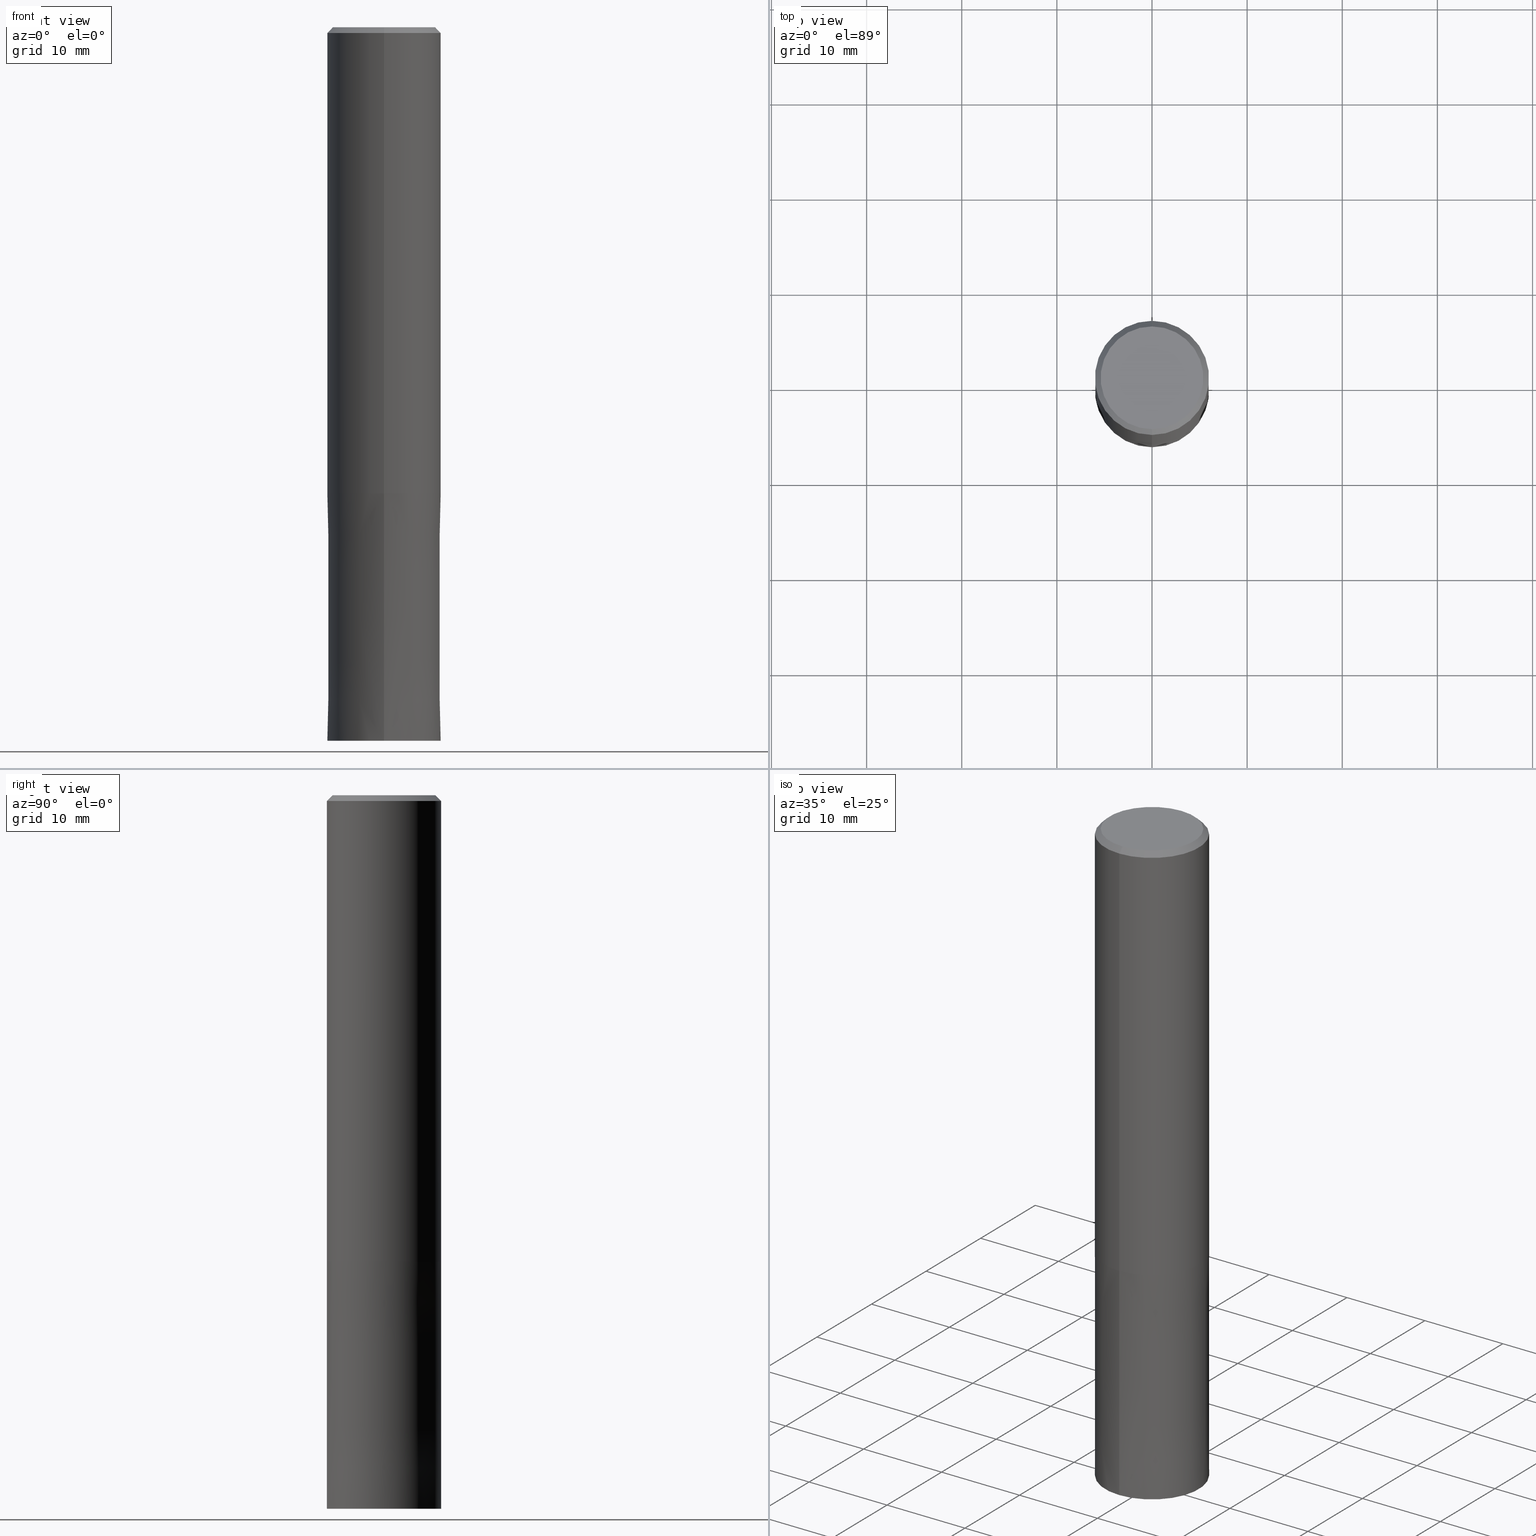
[diagram: canonical four-view strip — front | top / right | iso, engineering-drawing reading convention]
A machine part, canonical four-view strip (front | top / right | iso — engineering-drawing reading convention). The complete STEP part file that produces these views, byte-faithful:
ISO-10303-21;
HEADER;
FILE_DESCRIPTION(('no description'),'unknown implementation level');
FILE_NAME('HMS6120-2600-Huellk.stp','  ',('CIMSOURCE GmbH'),('CADClick - KiM GmbH - www.kimweb.de'),'unknown preprocess','ACIS','unknown authorization');
FILE_SCHEMA(('automotive_design'));
ENDSEC;
DATA;
#1=MECHANICAL_DESIGN_GEOMETRIC_PRESENTATION_REPRESENTATION(' ',(#14,#15,#16,#17,#18,#19,#20,#21,#22,#23,#24,#25,#26,#27,#28,#29,#30,#31,#32,#33,#34,#35,#36,#37,#38,#39,#40,#41,#42,#43,#44,#45,#46,#47,#48,#49,#50,#51,#52,#53,#54,#55,#56,#57,#58,#59,#60,#61,#62,#63,#64,#65,#66,#67,#68,#69,#70,#71,#72,#73,#74,#75,#76),#10);
#2=PRODUCT_DEFINITION_CONTEXT('',#77,'design');
#3=APPLICATION_PROTOCOL_DEFINITION('INTERNATIONAL STANDARD','automotive_design',1994,#77);
#4=PRODUCT_CATEGORY_RELATIONSHIP('NONE','NONE',#78,#79);
#5=SHAPE_DEFINITION_REPRESENTATION(#80,#81);
#6=PRODUCT_DEFINITION_CONTEXT('',#82,'design');
#7=APPLICATION_PROTOCOL_DEFINITION('INTERNATIONAL STANDARD','automotive_design',1994,#82);
#8=PRODUCT_CATEGORY_RELATIONSHIP('NONE','NONE',#83,#84);
#9=SHAPE_DEFINITION_REPRESENTATION(#85,#86);
#10= (GEOMETRIC_REPRESENTATION_CONTEXT(3)GLOBAL_UNCERTAINTY_ASSIGNED_CONTEXT((#89))GLOBAL_UNIT_ASSIGNED_CONTEXT((#91,#92,#93))REPRESENTATION_CONTEXT('NONE','WORKSPACE'));
#14=STYLED_ITEM('',(#95),#96);
#15=STYLED_ITEM('',(#97),#98);
#16=STYLED_ITEM('',(#99),#100);
#17=STYLED_ITEM('',(#101),#102);
#18=STYLED_ITEM('',(#103),#104);
#19=STYLED_ITEM('',(#105),#106);
#20=STYLED_ITEM('',(#107),#108);
#21=STYLED_ITEM('',(#109),#110);
#22=STYLED_ITEM('',(#111),#112);
#23=STYLED_ITEM('',(#113),#114);
#24=STYLED_ITEM('',(#115),#116);
#25=STYLED_ITEM('',(#117),#118);
#26=STYLED_ITEM('',(#119),#120);
#27=STYLED_ITEM('',(#121),#122);
#28=STYLED_ITEM('',(#123),#124);
#29=STYLED_ITEM('',(#125),#126);
#30=STYLED_ITEM('',(#127),#128);
#31=STYLED_ITEM('',(#129),#130);
#32=STYLED_ITEM('',(#131),#132);
#33=STYLED_ITEM('',(#133),#134);
#34=STYLED_ITEM('',(#135),#136);
#35=STYLED_ITEM('',(#137),#138);
#36=STYLED_ITEM('',(#139),#140);
#37=STYLED_ITEM('',(#141),#142);
#38=STYLED_ITEM('',(#143),#144);
#39=STYLED_ITEM('',(#145),#146);
#40=STYLED_ITEM('',(#147),#148);
#41=STYLED_ITEM('',(#149),#150);
#42=STYLED_ITEM('',(#151),#152);
#43=STYLED_ITEM('',(#153),#154);
#44=STYLED_ITEM('',(#155),#156);
#45=STYLED_ITEM('',(#157),#158);
#46=STYLED_ITEM('',(#159),#160);
#47=STYLED_ITEM('',(#161),#162);
#48=STYLED_ITEM('',(#163),#164);
#49=STYLED_ITEM('',(#165),#166);
#50=STYLED_ITEM('',(#167),#168);
#51=STYLED_ITEM('',(#169),#170);
#52=STYLED_ITEM('',(#171),#172);
#53=STYLED_ITEM('',(#173),#174);
#54=STYLED_ITEM('',(#175),#176);
#55=STYLED_ITEM('',(#177),#178);
#56=STYLED_ITEM('',(#179),#180);
#57=STYLED_ITEM('',(#181),#182);
#58=STYLED_ITEM('',(#183),#184);
#59=STYLED_ITEM('',(#185),#186);
#60=STYLED_ITEM('',(#187),#188);
#61=STYLED_ITEM('',(#189),#190);
#62=STYLED_ITEM('',(#191),#192);
#63=STYLED_ITEM('',(#193),#194);
#64=STYLED_ITEM('',(#195),#196);
#65=STYLED_ITEM('',(#197),#198);
#66=STYLED_ITEM('',(#199),#200);
#67=STYLED_ITEM('',(#201),#202);
#68=STYLED_ITEM('',(#203),#204);
#69=STYLED_ITEM('',(#205),#206);
#70=STYLED_ITEM('',(#207),#208);
#71=STYLED_ITEM('',(#209),#210);
#72=STYLED_ITEM('',(#211),#212);
#73=STYLED_ITEM('',(#213),#214);
#74=STYLED_ITEM('',(#215),#216);
#75=STYLED_ITEM('',(#217),#218);
#76=STYLED_ITEM('',(#219),#220);
#77=APPLICATION_CONTEXT(' ');
#78=PRODUCT_CATEGORY('part','NONE');
#79=PRODUCT_RELATED_PRODUCT_CATEGORY('detail',' ',(#221));
#80=PRODUCT_DEFINITION_SHAPE('NONE','NONE',#222);
#81=ADVANCED_BREP_SHAPE_REPRESENTATION('1',(#220,#223),#10);
#82=APPLICATION_CONTEXT(' ');
#83=PRODUCT_CATEGORY('part','NONE');
#84=PRODUCT_RELATED_PRODUCT_CATEGORY('detail',' ',(#224));
#85=PRODUCT_DEFINITION_SHAPE('NONE','NONE',#225);
#86=ADVANCED_BREP_SHAPE_REPRESENTATION('2',(#160,#226),#10);
#89=UNCERTAINTY_MEASURE_WITH_UNIT(LENGTH_MEASURE(1.0E-006),#91,'','');
#91= (CONVERSION_BASED_UNIT('MILLIMETRE',#229)LENGTH_UNIT()NAMED_UNIT(#232));
#92= (NAMED_UNIT(#234)PLANE_ANGLE_UNIT()SI_UNIT($,.RADIAN.));
#93= (NAMED_UNIT(#234)SOLID_ANGLE_UNIT()SI_UNIT($,.STERADIAN.));
#95=PRESENTATION_STYLE_ASSIGNMENT((#240));
#96=VERTEX_POINT('',#241);
#97=PRESENTATION_STYLE_ASSIGNMENT((#242));
#98=EDGE_CURVE('',#136,#218,#243,.T.);
#99=PRESENTATION_STYLE_ASSIGNMENT((#244));
#100=EDGE_CURVE('',#176,#172,#245,.T.);
#101=PRESENTATION_STYLE_ASSIGNMENT((#246));
#102=EDGE_CURVE('',#120,#210,#247,.T.);
#103=PRESENTATION_STYLE_ASSIGNMENT((#248));
#104=EDGE_CURVE('',#172,#180,#249,.T.);
#105=PRESENTATION_STYLE_ASSIGNMENT((#250));
#106=EDGE_CURVE('',#210,#120,#251,.T.);
#107=PRESENTATION_STYLE_ASSIGNMENT((#252));
#108=ADVANCED_FACE('',(#253),#254,.T.);
#109=PRESENTATION_STYLE_ASSIGNMENT((#255));
#110=EDGE_CURVE('',#172,#176,#256,.T.);
#111=PRESENTATION_STYLE_ASSIGNMENT((#257));
#112=EDGE_CURVE('',#150,#192,#258,.T.);
#113=PRESENTATION_STYLE_ASSIGNMENT((#259));
#114=EDGE_CURVE('',#138,#190,#260,.T.);
#115=PRESENTATION_STYLE_ASSIGNMENT((#261));
#116=EDGE_CURVE('',#140,#96,#262,.T.);
#117=PRESENTATION_STYLE_ASSIGNMENT((#263));
#118=EDGE_CURVE('',#170,#138,#264,.T.);
#119=PRESENTATION_STYLE_ASSIGNMENT((#265));
#120=VERTEX_POINT('',#266);
#121=PRESENTATION_STYLE_ASSIGNMENT((#267));
#122=ADVANCED_FACE('',(#268),#269,.F.);
#123=PRESENTATION_STYLE_ASSIGNMENT((#270));
#124=ADVANCED_FACE('',(#271,#272),#273,.T.);
#125=PRESENTATION_STYLE_ASSIGNMENT((#274));
#126=ADVANCED_FACE('',(#275),#276,.T.);
#127=PRESENTATION_STYLE_ASSIGNMENT((#277));
#128=EDGE_CURVE('',#170,#96,#278,.T.);
#129=PRESENTATION_STYLE_ASSIGNMENT((#279));
#130=EDGE_CURVE('',#174,#192,#280,.T.);
#131=PRESENTATION_STYLE_ASSIGNMENT((#281));
#132=EDGE_CURVE('',#164,#176,#282,.T.);
#133=PRESENTATION_STYLE_ASSIGNMENT((#283));
#134=EDGE_CURVE('',#154,#150,#284,.T.);
#135=PRESENTATION_STYLE_ASSIGNMENT((#285));
#136=VERTEX_POINT('',#286);
#137=PRESENTATION_STYLE_ASSIGNMENT((#287));
#138=VERTEX_POINT('',#288);
#139=PRESENTATION_STYLE_ASSIGNMENT((#289));
#140=VERTEX_POINT('',#290);
#141=PRESENTATION_STYLE_ASSIGNMENT((#291));
#142=EDGE_CURVE('',#164,#180,#292,.T.);
#143=PRESENTATION_STYLE_ASSIGNMENT((#293));
#144=ADVANCED_FACE('',(#294),#295,.F.);
#145=PRESENTATION_STYLE_ASSIGNMENT((#296));
#146=EDGE_CURVE('',#120,#136,#297,.T.);
#147=PRESENTATION_STYLE_ASSIGNMENT((#298));
#148=ADVANCED_FACE('',(#299),#300,.T.);
#149=PRESENTATION_STYLE_ASSIGNMENT((#301));
#150=VERTEX_POINT('',#302);
#151=PRESENTATION_STYLE_ASSIGNMENT((#303));
#152=EDGE_CURVE('',#96,#140,#304,.T.);
#153=PRESENTATION_STYLE_ASSIGNMENT((#305));
#154=VERTEX_POINT('',#306);
#155=PRESENTATION_STYLE_ASSIGNMENT((#307));
#156=EDGE_CURVE('',#140,#138,#308,.T.);
#157=PRESENTATION_STYLE_ASSIGNMENT((#309));
#158=EDGE_CURVE('',#180,#164,#310,.T.);
#159=PRESENTATION_STYLE_ASSIGNMENT((#311));
#160=MANIFOLD_SOLID_BREP('2',#312);
#161=PRESENTATION_STYLE_ASSIGNMENT((#313));
#162=ADVANCED_FACE('',(#314,#315),#316,.T.);
#163=PRESENTATION_STYLE_ASSIGNMENT((#317));
#164=VERTEX_POINT('',#318);
#165=PRESENTATION_STYLE_ASSIGNMENT((#319));
#166=ADVANCED_FACE('',(#320),#321,.T.);
#167=PRESENTATION_STYLE_ASSIGNMENT((#322));
#168=VERTEX_POINT('',#323);
#169=PRESENTATION_STYLE_ASSIGNMENT((#324));
#170=VERTEX_POINT('',#325);
#171=PRESENTATION_STYLE_ASSIGNMENT((#326));
#172=VERTEX_POINT('',#327);
#173=PRESENTATION_STYLE_ASSIGNMENT((#328));
#174=VERTEX_POINT('',#329);
#175=PRESENTATION_STYLE_ASSIGNMENT((#330));
#176=VERTEX_POINT('',#331);
#177=PRESENTATION_STYLE_ASSIGNMENT((#332));
#178=ADVANCED_FACE('',(#333),#334,.T.);
#179=PRESENTATION_STYLE_ASSIGNMENT((#335));
#180=VERTEX_POINT('',#336);
#181=PRESENTATION_STYLE_ASSIGNMENT((#337));
#182=EDGE_CURVE('',#218,#136,#338,.T.);
#183=PRESENTATION_STYLE_ASSIGNMENT((#339));
#184=ADVANCED_FACE('',(#340),#341,.T.);
#185=PRESENTATION_STYLE_ASSIGNMENT((#342));
#186=ADVANCED_FACE('',(#343),#344,.T.);
#187=PRESENTATION_STYLE_ASSIGNMENT((#345));
#188=EDGE_CURVE('',#174,#154,#346,.T.);
#189=PRESENTATION_STYLE_ASSIGNMENT((#347));
#190=VERTEX_POINT('',#348);
#191=PRESENTATION_STYLE_ASSIGNMENT((#349));
#192=VERTEX_POINT('',#350);
#193=PRESENTATION_STYLE_ASSIGNMENT((#351));
#194=ADVANCED_FACE('',(#352),#353,.T.);
#195=PRESENTATION_STYLE_ASSIGNMENT((#354));
#196=EDGE_CURVE('',#150,#154,#355,.T.);
#197=PRESENTATION_STYLE_ASSIGNMENT((#356));
#198=EDGE_CURVE('',#168,#170,#357,.T.);
#199=PRESENTATION_STYLE_ASSIGNMENT((#358));
#200=ADVANCED_FACE('',(#359),#360,.T.);
#201=PRESENTATION_STYLE_ASSIGNMENT((#361));
#202=ADVANCED_FACE('',(#362,#363),#364,.T.);
#203=PRESENTATION_STYLE_ASSIGNMENT((#365));
#204=EDGE_CURVE('',#218,#210,#366,.T.);
#205=PRESENTATION_STYLE_ASSIGNMENT((#367));
#206=EDGE_CURVE('',#192,#174,#368,.T.);
#207=PRESENTATION_STYLE_ASSIGNMENT((#369));
#208=EDGE_CURVE('',#190,#168,#370,.T.);
#209=PRESENTATION_STYLE_ASSIGNMENT((#371));
#210=VERTEX_POINT('',#372);
#211=PRESENTATION_STYLE_ASSIGNMENT((#373));
#212=EDGE_CURVE('',#168,#190,#374,.T.);
#213=PRESENTATION_STYLE_ASSIGNMENT((#375));
#214=ADVANCED_FACE('',(#376),#377,.T.);
#215=PRESENTATION_STYLE_ASSIGNMENT((#378));
#216=EDGE_CURVE('',#138,#170,#379,.T.);
#217=PRESENTATION_STYLE_ASSIGNMENT((#380));
#218=VERTEX_POINT('',#381);
#219=PRESENTATION_STYLE_ASSIGNMENT((#382));
#220=MANIFOLD_SOLID_BREP('1',#383);
#221=PRODUCT('1','1','PART-1-DESC',(#384));
#222=PRODUCT_DEFINITION('NONE','NONE',#385,#2);
#223=AXIS2_PLACEMENT_3D('',#386,#387,#388);
#224=PRODUCT('2','2','PART-2-DESC',(#389));
#225=PRODUCT_DEFINITION('NONE','NONE',#390,#6);
#226=AXIS2_PLACEMENT_3D('',#391,#392,#393);
#229=LENGTH_MEASURE_WITH_UNIT(LENGTH_MEASURE(1.0),#394);
#232=DIMENSIONAL_EXPONENTS(1.0,0.0,0.0,0.0,0.0,0.0,0.0);
#234=DIMENSIONAL_EXPONENTS(0.0,0.0,0.0,0.0,0.0,0.0,0.0);
#240=POINT_STYLE(' ',#395,POSITIVE_LENGTH_MEASURE(1.0E-006),#396);
#241=CARTESIAN_POINT('',(0.0,6.0,-49.0));
#242=CURVE_STYLE('',#397,POSITIVE_LENGTH_MEASURE(1.0E-006),#398);
#243=CIRCLE('',#399,2.7);
#244=CURVE_STYLE('',#400,POSITIVE_LENGTH_MEASURE(1.0E-006),#401);
#245=CIRCLE('',#402,2.7);
#246=CURVE_STYLE('',#403,POSITIVE_LENGTH_MEASURE(1.0E-006),#404);
#247=CIRCLE('',#405,2.7);
#248=CURVE_STYLE('',#406,POSITIVE_LENGTH_MEASURE(1.0E-006),#407);
#249=LINE('',#408,#409);
#250=CURVE_STYLE('',#410,POSITIVE_LENGTH_MEASURE(1.0E-006),#411);
#251=CIRCLE('',#412,2.7);
#252=SURFACE_STYLE_USAGE(.BOTH.,#413);
#253=FACE_OUTER_BOUND('',#414,.T.);
#254=CYLINDRICAL_SURFACE('',#415,2.7);
#255=CURVE_STYLE('',#416,POSITIVE_LENGTH_MEASURE(1.0E-006),#417);
#256=CIRCLE('',#418,2.7);
#257=CURVE_STYLE('',#419,POSITIVE_LENGTH_MEASURE(1.0E-006),#420);
#258=LINE('',#421,#422);
#259=CURVE_STYLE('',#423,POSITIVE_LENGTH_MEASURE(1.0E-006),#424);
#260=LINE('',#425,#426);
#261=CURVE_STYLE('',#427,POSITIVE_LENGTH_MEASURE(1.0E-006),#428);
#262=CIRCLE('',#429,6.0);
#263=CURVE_STYLE('',#430,POSITIVE_LENGTH_MEASURE(1.0E-006),#431);
#264=CIRCLE('',#432,6.0);
#265=POINT_STYLE(' ',#433,POSITIVE_LENGTH_MEASURE(1.0E-006),#434);
#266=CARTESIAN_POINT('',(0.0,2.7,-49.0));
#267=SURFACE_STYLE_USAGE(.BOTH.,#435);
#268=FACE_OUTER_BOUND('',#436,.T.);
#269=CYLINDRICAL_SURFACE('',#437,2.7);
#270=SURFACE_STYLE_USAGE(.BOTH.,#438);
#271=FACE_OUTER_BOUND('',#439,.T.);
#272=FACE_BOUND('',#440,.T.);
#273=PLANE('',#441);
#274=SURFACE_STYLE_USAGE(.BOTH.,#442);
#275=FACE_OUTER_BOUND('',#443,.T.);
#276=PLANE('',#444);
#277=CURVE_STYLE('',#445,POSITIVE_LENGTH_MEASURE(1.0E-006),#446);
#278=LINE('',#447,#448);
#279=CURVE_STYLE('',#449,POSITIVE_LENGTH_MEASURE(1.0E-006),#450);
#280=CIRCLE('',#451,5.9999);
#281=CURVE_STYLE('',#452,POSITIVE_LENGTH_MEASURE(1.0E-006),#453);
#282=LINE('',#454,#455);
#283=CURVE_STYLE('',#456,POSITIVE_LENGTH_MEASURE(1.0E-006),#457);
#284=CIRCLE('',#458,6.0);
#285=POINT_STYLE(' ',#459,POSITIVE_LENGTH_MEASURE(1.0E-006),#460);
#286=CARTESIAN_POINT('',(0.0,2.7,-75.0));
#287=POINT_STYLE(' ',#461,POSITIVE_LENGTH_MEASURE(1.0E-006),#462);
#288=CARTESIAN_POINT('',(7.34763812293426E-016,-6.0,-0.600000000000001));
#289=POINT_STYLE(' ',#463,POSITIVE_LENGTH_MEASURE(1.0E-006),#464);
#290=CARTESIAN_POINT('',(7.34763812293426E-016,-6.0,-49.0));
#291=CURVE_STYLE('',#465,POSITIVE_LENGTH_MEASURE(1.0E-006),#466);
#292=CIRCLE('',#467,2.7);
#293=SURFACE_STYLE_USAGE(.BOTH.,#468);
#294=FACE_OUTER_BOUND('',#469,.T.);
#295=CYLINDRICAL_SURFACE('',#470,2.7);
#296=CURVE_STYLE('',#471,POSITIVE_LENGTH_MEASURE(1.0E-006),#472);
#297=LINE('',#473,#474);
#298=SURFACE_STYLE_USAGE(.BOTH.,#475);
#299=FACE_OUTER_BOUND('',#476,.T.);
#300=CYLINDRICAL_SURFACE('',#477,2.7);
#301=POINT_STYLE(' ',#478,POSITIVE_LENGTH_MEASURE(1.0E-006),#479);
#302=CARTESIAN_POINT('',(7.34763812293426E-016,-6.0,-75.0));
#303=CURVE_STYLE('',#480,POSITIVE_LENGTH_MEASURE(1.0E-006),#481);
#304=CIRCLE('',#482,6.0);
#305=POINT_STYLE(' ',#483,POSITIVE_LENGTH_MEASURE(1.0E-006),#484);
#306=CARTESIAN_POINT('',(0.0,6.0,-75.0));
#307=CURVE_STYLE('',#485,POSITIVE_LENGTH_MEASURE(1.0E-006),#486);
#308=LINE('',#487,#488);
#309=CURVE_STYLE('',#489,POSITIVE_LENGTH_MEASURE(1.0E-006),#490);
#310=CIRCLE('',#491,2.7);
#311=SURFACE_STYLE_USAGE(.BOTH.,#492);
#312=CLOSED_SHELL('',(#144,#178,#124,#186,#162,#122));
#313=SURFACE_STYLE_USAGE(.BOTH.,#493);
#314=FACE_OUTER_BOUND('',#494,.T.);
#315=FACE_BOUND('',#495,.T.);
#316=PLANE('',#496);
#317=POINT_STYLE(' ',#497,POSITIVE_LENGTH_MEASURE(1.0E-006),#498);
#318=CARTESIAN_POINT('',(0.0,2.7,-49.0));
#319=SURFACE_STYLE_USAGE(.BOTH.,#499);
#320=FACE_OUTER_BOUND('',#500,.T.);
#321=CONICAL_SURFACE('',#501,5.7,0.785398163397447);
#322=POINT_STYLE(' ',#502,POSITIVE_LENGTH_MEASURE(1.0E-006),#503);
#323=CARTESIAN_POINT('',(0.0,5.4,0.0));
#324=POINT_STYLE(' ',#504,POSITIVE_LENGTH_MEASURE(1.0E-006),#505);
#325=CARTESIAN_POINT('',(0.0,6.0,-0.600000000000001));
#326=POINT_STYLE(' ',#506,POSITIVE_LENGTH_MEASURE(1.0E-006),#507);
#327=CARTESIAN_POINT('',(3.30643715532042E-016,-2.7,-74.76));
#328=POINT_STYLE(' ',#508,POSITIVE_LENGTH_MEASURE(1.0E-006),#509);
#329=CARTESIAN_POINT('',(0.0,5.9999,-49.0));
#330=POINT_STYLE(' ',#510,POSITIVE_LENGTH_MEASURE(1.0E-006),#511);
#331=CARTESIAN_POINT('',(0.0,2.7,-74.76));
#332=SURFACE_STYLE_USAGE(.BOTH.,#512);
#333=FACE_OUTER_BOUND('',#513,.T.);
#334=CONICAL_SURFACE('',#514,5.99995,3.84615384612592E-006);
#335=POINT_STYLE(' ',#515,POSITIVE_LENGTH_MEASURE(1.0E-006),#516);
#336=CARTESIAN_POINT('',(3.30643715532042E-016,-2.7,-49.0));
#337=CURVE_STYLE('',#517,POSITIVE_LENGTH_MEASURE(1.0E-006),#518);
#338=CIRCLE('',#519,2.7);
#339=SURFACE_STYLE_USAGE(.BOTH.,#520);
#340=FACE_OUTER_BOUND('',#521,.T.);
#341=CONICAL_SURFACE('',#522,5.7,0.785398163397447);
#342=SURFACE_STYLE_USAGE(.BOTH.,#523);
#343=FACE_OUTER_BOUND('',#524,.T.);
#344=CONICAL_SURFACE('',#525,5.99995,3.84615384612592E-006);
#345=CURVE_STYLE('',#526,POSITIVE_LENGTH_MEASURE(1.0E-006),#527);
#346=LINE('',#528,#529);
#347=POINT_STYLE(' ',#530,POSITIVE_LENGTH_MEASURE(1.0E-006),#531);
#348=CARTESIAN_POINT('',(6.61287431064084E-016,-5.4,0.0));
#349=POINT_STYLE(' ',#532,POSITIVE_LENGTH_MEASURE(1.0E-006),#533);
#350=CARTESIAN_POINT('',(7.34751566229888E-016,-5.9999,-49.0));
#351=SURFACE_STYLE_USAGE(.BOTH.,#534);
#352=FACE_OUTER_BOUND('',#535,.T.);
#353=CYLINDRICAL_SURFACE('',#536,6.0);
#354=CURVE_STYLE('',#537,POSITIVE_LENGTH_MEASURE(1.0E-006),#538);
#355=CIRCLE('',#539,6.0);
#356=CURVE_STYLE('',#540,POSITIVE_LENGTH_MEASURE(1.0E-006),#541);
#357=LINE('',#542,#543);
#358=SURFACE_STYLE_USAGE(.BOTH.,#544);
#359=FACE_OUTER_BOUND('',#545,.T.);
#360=PLANE('',#546);
#361=SURFACE_STYLE_USAGE(.BOTH.,#547);
#362=FACE_OUTER_BOUND('',#548,.T.);
#363=FACE_BOUND('',#549,.T.);
#364=PLANE('',#550);
#365=CURVE_STYLE('',#551,POSITIVE_LENGTH_MEASURE(1.0E-006),#552);
#366=LINE('',#553,#554);
#367=CURVE_STYLE('',#555,POSITIVE_LENGTH_MEASURE(1.0E-006),#556);
#368=CIRCLE('',#557,5.9999);
#369=CURVE_STYLE('',#558,POSITIVE_LENGTH_MEASURE(1.0E-006),#559);
#370=CIRCLE('',#560,5.4);
#371=POINT_STYLE(' ',#561,POSITIVE_LENGTH_MEASURE(1.0E-006),#562);
#372=CARTESIAN_POINT('',(3.30643715532042E-016,-2.7,-49.0));
#373=CURVE_STYLE('',#563,POSITIVE_LENGTH_MEASURE(1.0E-006),#564);
#374=CIRCLE('',#565,5.4);
#375=SURFACE_STYLE_USAGE(.BOTH.,#566);
#376=FACE_OUTER_BOUND('',#567,.T.);
#377=CYLINDRICAL_SURFACE('',#568,6.0);
#378=CURVE_STYLE('',#569,POSITIVE_LENGTH_MEASURE(1.0E-006),#570);
#379=CIRCLE('',#571,6.0);
#380=POINT_STYLE(' ',#572,POSITIVE_LENGTH_MEASURE(1.0E-006),#573);
#381=CARTESIAN_POINT('',(3.30643715532042E-016,-2.7,-75.0));
#382=SURFACE_STYLE_USAGE(.BOTH.,#574);
#383=CLOSED_SHELL('',(#108,#194,#184,#202,#200,#166,#214,#148,#126));
#384=PRODUCT_CONTEXT('',#77,'mechanical');
#385=PRODUCT_DEFINITION_FORMATION_WITH_SPECIFIED_SOURCE(' ','NONE',#221,.NOT_KNOWN.);
#386=CARTESIAN_POINT('',(0.0,0.0,0.0));
#387=DIRECTION('',(0.0,0.0,1.0));
#388=DIRECTION('',(1.0,0.0,0.0));
#389=PRODUCT_CONTEXT('',#82,'mechanical');
#390=PRODUCT_DEFINITION_FORMATION_WITH_SPECIFIED_SOURCE(' ','NONE',#224,.NOT_KNOWN.);
#391=CARTESIAN_POINT('',(0.0,0.0,0.0));
#392=DIRECTION('',(0.0,0.0,1.0));
#393=DIRECTION('',(1.0,0.0,0.0));
#394= (NAMED_UNIT(#232)LENGTH_UNIT()SI_UNIT(.MILLI.,.METRE.));
#395=PRE_DEFINED_MARKER('');
#396=COLOUR_RGB('',0.498039215803146,0.498039215803146,0.498039215803146);
#397=DRAUGHTING_PRE_DEFINED_CURVE_FONT('continuous');
#398=COLOUR_RGB('',0.800000011920929,0.800000011920929,0.800000011920929);
#399=AXIS2_PLACEMENT_3D('',#576,#577,#578);
#400=DRAUGHTING_PRE_DEFINED_CURVE_FONT('continuous');
#401=COLOUR_RGB('',0.498039215803146,0.498039215803146,0.498039215803146);
#402=AXIS2_PLACEMENT_3D('',#579,#580,#581);
#403=DRAUGHTING_PRE_DEFINED_CURVE_FONT('continuous');
#404=COLOUR_RGB('',0.800000011920929,0.800000011920929,0.800000011920929);
#405=AXIS2_PLACEMENT_3D('',#582,#583,#584);
#406=DRAUGHTING_PRE_DEFINED_CURVE_FONT('continuous');
#407=COLOUR_RGB('',0.498039215803146,0.498039215803146,0.498039215803146);
#408=CARTESIAN_POINT('',(3.30643715532042E-016,-2.7,-61.88));
#409=VECTOR('',#585,1.0);
#410=DRAUGHTING_PRE_DEFINED_CURVE_FONT('continuous');
#411=COLOUR_RGB('',0.800000011920929,0.800000011920929,0.800000011920929);
#412=AXIS2_PLACEMENT_3D('',#586,#587,#588);
#413=SURFACE_SIDE_STYLE('',(#589));
#414=EDGE_LOOP('',(#590,#591,#592,#593));
#415=AXIS2_PLACEMENT_3D('',#594,#595,#596);
#416=DRAUGHTING_PRE_DEFINED_CURVE_FONT('continuous');
#417=COLOUR_RGB('',0.498039215803146,0.498039215803146,0.498039215803146);
#418=AXIS2_PLACEMENT_3D('',#597,#598,#599);
#419=DRAUGHTING_PRE_DEFINED_CURVE_FONT('continuous');
#420=COLOUR_RGB('',0.800000011920929,0.800000011920929,0.800000011920929);
#421=CARTESIAN_POINT('',(7.34757689261657E-016,-5.99995,-62.0));
#422=VECTOR('',#600,1.0);
#423=DRAUGHTING_PRE_DEFINED_CURVE_FONT('continuous');
#424=COLOUR_RGB('',0.498039215803146,0.498039215803146,0.498039215803146);
#425=CARTESIAN_POINT('',(6.98025621678755E-016,-5.7,-0.300000000000004));
#426=VECTOR('',#601,1.0);
#427=DRAUGHTING_PRE_DEFINED_CURVE_FONT('continuous');
#428=COLOUR_RGB('',0.498039215803146,0.498039215803146,0.498039215803146);
#429=AXIS2_PLACEMENT_3D('',#602,#603,#604);
#430=DRAUGHTING_PRE_DEFINED_CURVE_FONT('continuous');
#431=COLOUR_RGB('',0.498039215803146,0.498039215803146,0.498039215803146);
#432=AXIS2_PLACEMENT_3D('',#605,#606,#607);
#433=PRE_DEFINED_MARKER('');
#434=COLOUR_RGB('',0.800000011920929,0.800000011920929,0.800000011920929);
#435=SURFACE_SIDE_STYLE('',(#608));
#436=EDGE_LOOP('',(#609,#610,#611,#612));
#437=AXIS2_PLACEMENT_3D('',#613,#614,#615);
#438=SURFACE_SIDE_STYLE('',(#616));
#439=EDGE_LOOP('',(#617,#618));
#440=EDGE_LOOP('',(#619,#620));
#441=AXIS2_PLACEMENT_3D('',#621,#622,#623);
#442=SURFACE_SIDE_STYLE('',(#624));
#443=EDGE_LOOP('',(#625,#626));
#444=AXIS2_PLACEMENT_3D('',#627,#628,#629);
#445=DRAUGHTING_PRE_DEFINED_CURVE_FONT('continuous');
#446=COLOUR_RGB('',0.498039215803146,0.498039215803146,0.498039215803146);
#447=CARTESIAN_POINT('',(-7.34763812293426E-016,6.0,-24.8));
#448=VECTOR('',#630,1.0);
#449=DRAUGHTING_PRE_DEFINED_CURVE_FONT('continuous');
#450=COLOUR_RGB('',0.800000011920929,0.800000011920929,0.800000011920929);
#451=AXIS2_PLACEMENT_3D('',#631,#632,#633);
#452=DRAUGHTING_PRE_DEFINED_CURVE_FONT('continuous');
#453=COLOUR_RGB('',0.498039215803146,0.498039215803146,0.498039215803146);
#454=CARTESIAN_POINT('',(-3.30643715532042E-016,2.7,-61.88));
#455=VECTOR('',#634,1.0);
#456=DRAUGHTING_PRE_DEFINED_CURVE_FONT('continuous');
#457=COLOUR_RGB('',0.800000011920929,0.800000011920929,0.800000011920929);
#458=AXIS2_PLACEMENT_3D('',#635,#636,#637);
#459=PRE_DEFINED_MARKER('');
#460=COLOUR_RGB('',0.800000011920929,0.800000011920929,0.800000011920929);
#461=PRE_DEFINED_MARKER('');
#462=COLOUR_RGB('',0.498039215803146,0.498039215803146,0.498039215803146);
#463=PRE_DEFINED_MARKER('');
#464=COLOUR_RGB('',0.498039215803146,0.498039215803146,0.498039215803146);
#465=DRAUGHTING_PRE_DEFINED_CURVE_FONT('continuous');
#466=COLOUR_RGB('',0.498039215803146,0.498039215803146,0.498039215803146);
#467=AXIS2_PLACEMENT_3D('',#638,#639,#640);
#468=SURFACE_SIDE_STYLE('',(#641));
#469=EDGE_LOOP('',(#642,#643,#644,#645));
#470=AXIS2_PLACEMENT_3D('',#646,#647,#648);
#471=DRAUGHTING_PRE_DEFINED_CURVE_FONT('continuous');
#472=COLOUR_RGB('',0.800000011920929,0.800000011920929,0.800000011920929);
#473=CARTESIAN_POINT('',(-3.30643715532042E-016,2.7,-62.0));
#474=VECTOR('',#649,1.0);
#475=SURFACE_SIDE_STYLE('',(#650));
#476=EDGE_LOOP('',(#651,#652,#653,#654));
#477=AXIS2_PLACEMENT_3D('',#655,#656,#657);
#478=PRE_DEFINED_MARKER('');
#479=COLOUR_RGB('',0.800000011920929,0.800000011920929,0.800000011920929);
#480=DRAUGHTING_PRE_DEFINED_CURVE_FONT('continuous');
#481=COLOUR_RGB('',0.498039215803146,0.498039215803146,0.498039215803146);
#482=AXIS2_PLACEMENT_3D('',#658,#659,#660);
#483=PRE_DEFINED_MARKER('');
#484=COLOUR_RGB('',0.800000011920929,0.800000011920929,0.800000011920929);
#485=DRAUGHTING_PRE_DEFINED_CURVE_FONT('continuous');
#486=COLOUR_RGB('',0.498039215803146,0.498039215803146,0.498039215803146);
#487=CARTESIAN_POINT('',(7.34763812293426E-016,-6.0,-24.8));
#488=VECTOR('',#661,1.0);
#489=DRAUGHTING_PRE_DEFINED_CURVE_FONT('continuous');
#490=COLOUR_RGB('',0.498039215803146,0.498039215803146,0.498039215803146);
#491=AXIS2_PLACEMENT_3D('',#662,#663,#664);
#492=SURFACE_SIDE_STYLE('',(#665));
#493=SURFACE_SIDE_STYLE('',(#666));
#494=EDGE_LOOP('',(#667,#668));
#495=EDGE_LOOP('',(#669,#670));
#496=AXIS2_PLACEMENT_3D('',#671,#672,#673);
#497=PRE_DEFINED_MARKER('');
#498=COLOUR_RGB('',0.498039215803146,0.498039215803146,0.498039215803146);
#499=SURFACE_SIDE_STYLE('',(#674));
#500=EDGE_LOOP('',(#675,#676,#677,#678));
#501=AXIS2_PLACEMENT_3D('',#679,#680,#681);
#502=PRE_DEFINED_MARKER('');
#503=COLOUR_RGB('',0.498039215803146,0.498039215803146,0.498039215803146);
#504=PRE_DEFINED_MARKER('');
#505=COLOUR_RGB('',0.498039215803146,0.498039215803146,0.498039215803146);
#506=PRE_DEFINED_MARKER('');
#507=COLOUR_RGB('',0.498039215803146,0.498039215803146,0.498039215803146);
#508=PRE_DEFINED_MARKER('');
#509=COLOUR_RGB('',0.800000011920929,0.800000011920929,0.800000011920929);
#510=PRE_DEFINED_MARKER('');
#511=COLOUR_RGB('',0.498039215803146,0.498039215803146,0.498039215803146);
#512=SURFACE_SIDE_STYLE('',(#682));
#513=EDGE_LOOP('',(#683,#684,#685,#686));
#514=AXIS2_PLACEMENT_3D('',#687,#688,#689);
#515=PRE_DEFINED_MARKER('');
#516=COLOUR_RGB('',0.498039215803146,0.498039215803146,0.498039215803146);
#517=DRAUGHTING_PRE_DEFINED_CURVE_FONT('continuous');
#518=COLOUR_RGB('',0.800000011920929,0.800000011920929,0.800000011920929);
#519=AXIS2_PLACEMENT_3D('',#690,#691,#692);
#520=SURFACE_SIDE_STYLE('',(#693));
#521=EDGE_LOOP('',(#694,#695,#696,#697));
#522=AXIS2_PLACEMENT_3D('',#698,#699,#700);
#523=SURFACE_SIDE_STYLE('',(#701));
#524=EDGE_LOOP('',(#702,#703,#704,#705));
#525=AXIS2_PLACEMENT_3D('',#706,#707,#708);
#526=DRAUGHTING_PRE_DEFINED_CURVE_FONT('continuous');
#527=COLOUR_RGB('',0.800000011920929,0.800000011920929,0.800000011920929);
#528=CARTESIAN_POINT('',(-7.34757689261657E-016,5.99995,-62.0));
#529=VECTOR('',#709,1.0);
#530=PRE_DEFINED_MARKER('');
#531=COLOUR_RGB('',0.498039215803146,0.498039215803146,0.498039215803146);
#532=PRE_DEFINED_MARKER('');
#533=COLOUR_RGB('',0.800000011920929,0.800000011920929,0.800000011920929);
#534=SURFACE_SIDE_STYLE('',(#710));
#535=EDGE_LOOP('',(#711,#712,#713,#714));
#536=AXIS2_PLACEMENT_3D('',#715,#716,#717);
#537=DRAUGHTING_PRE_DEFINED_CURVE_FONT('continuous');
#538=COLOUR_RGB('',0.800000011920929,0.800000011920929,0.800000011920929);
#539=AXIS2_PLACEMENT_3D('',#718,#719,#720);
#540=DRAUGHTING_PRE_DEFINED_CURVE_FONT('continuous');
#541=COLOUR_RGB('',0.498039215803146,0.498039215803146,0.498039215803146);
#542=CARTESIAN_POINT('',(-6.98025621678755E-016,5.7,-0.300000000000004));
#543=VECTOR('',#721,1.0);
#544=SURFACE_SIDE_STYLE('',(#722));
#545=EDGE_LOOP('',(#723,#724));
#546=AXIS2_PLACEMENT_3D('',#725,#726,#727);
#547=SURFACE_SIDE_STYLE('',(#728));
#548=EDGE_LOOP('',(#729,#730));
#549=EDGE_LOOP('',(#731,#732));
#550=AXIS2_PLACEMENT_3D('',#733,#734,#735);
#551=DRAUGHTING_PRE_DEFINED_CURVE_FONT('continuous');
#552=COLOUR_RGB('',0.800000011920929,0.800000011920929,0.800000011920929);
#553=CARTESIAN_POINT('',(3.30643715532042E-016,-2.7,-62.0));
#554=VECTOR('',#736,1.0);
#555=DRAUGHTING_PRE_DEFINED_CURVE_FONT('continuous');
#556=COLOUR_RGB('',0.800000011920929,0.800000011920929,0.800000011920929);
#557=AXIS2_PLACEMENT_3D('',#737,#738,#739);
#558=DRAUGHTING_PRE_DEFINED_CURVE_FONT('continuous');
#559=COLOUR_RGB('',0.498039215803146,0.498039215803146,0.498039215803146);
#560=AXIS2_PLACEMENT_3D('',#740,#741,#742);
#561=PRE_DEFINED_MARKER('');
#562=COLOUR_RGB('',0.800000011920929,0.800000011920929,0.800000011920929);
#563=DRAUGHTING_PRE_DEFINED_CURVE_FONT('continuous');
#564=COLOUR_RGB('',0.498039215803146,0.498039215803146,0.498039215803146);
#565=AXIS2_PLACEMENT_3D('',#743,#744,#745);
#566=SURFACE_SIDE_STYLE('',(#746));
#567=EDGE_LOOP('',(#747,#748,#749,#750));
#568=AXIS2_PLACEMENT_3D('',#751,#752,#753);
#569=DRAUGHTING_PRE_DEFINED_CURVE_FONT('continuous');
#570=COLOUR_RGB('',0.498039215803146,0.498039215803146,0.498039215803146);
#571=AXIS2_PLACEMENT_3D('',#754,#755,#756);
#572=PRE_DEFINED_MARKER('');
#573=COLOUR_RGB('',0.800000011920929,0.800000011920929,0.800000011920929);
#574=SURFACE_SIDE_STYLE('',(#757));
#576=CARTESIAN_POINT('',(0.0,0.0,-75.0));
#577=DIRECTION('',(0.0,0.0,-1.0));
#578=DIRECTION('',(0.0,1.0,0.0));
#579=CARTESIAN_POINT('',(0.0,0.0,-74.76));
#580=DIRECTION('',(0.0,0.0,-1.0));
#581=DIRECTION('',(0.0,1.0,0.0));
#582=CARTESIAN_POINT('',(0.0,0.0,-49.0));
#583=DIRECTION('',(0.0,0.0,-1.0));
#584=DIRECTION('',(0.0,1.0,0.0));
#585=DIRECTION('',(-0.0,-0.0,1.0));
#586=CARTESIAN_POINT('',(0.0,0.0,-49.0));
#587=DIRECTION('',(0.0,0.0,-1.0));
#588=DIRECTION('',(0.0,1.0,0.0));
#589=SURFACE_STYLE_FILL_AREA(#758);
#590=ORIENTED_EDGE('',*,*,#132,.F.);
#591=ORIENTED_EDGE('',*,*,#142,.T.);
#592=ORIENTED_EDGE('',*,*,#104,.F.);
#593=ORIENTED_EDGE('',*,*,#100,.F.);
#594=CARTESIAN_POINT('',(0.0,0.0,-61.88));
#595=DIRECTION('',(-0.0,-0.0,1.0));
#596=DIRECTION('',(0.0,1.0,0.0));
#597=CARTESIAN_POINT('',(0.0,0.0,-74.76));
#598=DIRECTION('',(0.0,0.0,-1.0));
#599=DIRECTION('',(0.0,1.0,0.0));
#600=DIRECTION('',(-4.71002443773256E-022,3.84615384611643E-006,0.999999999992604));
#601=DIRECTION('',(-8.65927457071934E-017,0.707106781186546,0.707106781186549));
#602=CARTESIAN_POINT('',(0.0,0.0,-49.0));
#603=DIRECTION('',(0.0,0.0,-1.0));
#604=DIRECTION('',(0.0,1.0,0.0));
#605=CARTESIAN_POINT('',(0.0,0.0,-0.600000000000001));
#606=DIRECTION('',(0.0,0.0,-1.0));
#607=DIRECTION('',(0.0,1.0,0.0));
#608=SURFACE_STYLE_FILL_AREA(#759);
#609=ORIENTED_EDGE('',*,*,#146,.T.);
#610=ORIENTED_EDGE('',*,*,#98,.T.);
#611=ORIENTED_EDGE('',*,*,#204,.T.);
#612=ORIENTED_EDGE('',*,*,#102,.F.);
#613=CARTESIAN_POINT('',(0.0,0.0,-62.0));
#614=DIRECTION('',(-0.0,-0.0,1.0));
#615=DIRECTION('',(0.0,1.0,0.0));
#616=SURFACE_STYLE_FILL_AREA(#760);
#617=ORIENTED_EDGE('',*,*,#130,.F.);
#618=ORIENTED_EDGE('',*,*,#206,.F.);
#619=ORIENTED_EDGE('',*,*,#102,.T.);
#620=ORIENTED_EDGE('',*,*,#106,.T.);
#621=CARTESIAN_POINT('',(0.0,4.34995,-49.0));
#622=DIRECTION('',(-0.0,0.0,1.0));
#623=DIRECTION('',(0.0,-1.0,0.0));
#624=SURFACE_STYLE_FILL_AREA(#761);
#625=ORIENTED_EDGE('',*,*,#100,.T.);
#626=ORIENTED_EDGE('',*,*,#110,.T.);
#627=CARTESIAN_POINT('',(0.0,1.35,-74.76));
#628=DIRECTION('',(0.0,0.0,-1.0));
#629=DIRECTION('',(0.0,1.0,0.0));
#630=DIRECTION('',(0.0,0.0,-1.0));
#631=CARTESIAN_POINT('',(0.0,0.0,-49.0));
#632=DIRECTION('',(0.0,0.0,-1.0));
#633=DIRECTION('',(0.0,1.0,0.0));
#634=DIRECTION('',(0.0,0.0,-1.0));
#635=CARTESIAN_POINT('',(0.0,0.0,-75.0));
#636=DIRECTION('',(0.0,0.0,-1.0));
#637=DIRECTION('',(0.0,1.0,0.0));
#638=CARTESIAN_POINT('',(0.0,0.0,-49.0));
#639=DIRECTION('',(0.0,0.0,-1.0));
#640=DIRECTION('',(0.0,1.0,0.0));
#641=SURFACE_STYLE_FILL_AREA(#762);
#642=ORIENTED_EDGE('',*,*,#146,.F.);
#643=ORIENTED_EDGE('',*,*,#106,.F.);
#644=ORIENTED_EDGE('',*,*,#204,.F.);
#645=ORIENTED_EDGE('',*,*,#182,.T.);
#646=CARTESIAN_POINT('',(0.0,0.0,-62.0));
#647=DIRECTION('',(-0.0,-0.0,1.0));
#648=DIRECTION('',(0.0,1.0,0.0));
#649=DIRECTION('',(0.0,-0.0,-1.0));
#650=SURFACE_STYLE_FILL_AREA(#763);
#651=ORIENTED_EDGE('',*,*,#132,.T.);
#652=ORIENTED_EDGE('',*,*,#110,.F.);
#653=ORIENTED_EDGE('',*,*,#104,.T.);
#654=ORIENTED_EDGE('',*,*,#158,.T.);
#655=CARTESIAN_POINT('',(0.0,0.0,-61.88));
#656=DIRECTION('',(-0.0,-0.0,1.0));
#657=DIRECTION('',(0.0,1.0,0.0));
#658=CARTESIAN_POINT('',(0.0,0.0,-49.0));
#659=DIRECTION('',(0.0,0.0,-1.0));
#660=DIRECTION('',(0.0,1.0,0.0));
#661=DIRECTION('',(-0.0,-0.0,1.0));
#662=CARTESIAN_POINT('',(0.0,0.0,-49.0));
#663=DIRECTION('',(0.0,0.0,-1.0));
#664=DIRECTION('',(0.0,1.0,0.0));
#665=SURFACE_STYLE_FILL_AREA(#764);
#666=SURFACE_STYLE_FILL_AREA(#765);
#667=ORIENTED_EDGE('',*,*,#134,.T.);
#668=ORIENTED_EDGE('',*,*,#196,.T.);
#669=ORIENTED_EDGE('',*,*,#98,.F.);
#670=ORIENTED_EDGE('',*,*,#182,.F.);
#671=CARTESIAN_POINT('',(0.0,4.3475,-75.0));
#672=DIRECTION('',(0.0,0.0,-1.0));
#673=DIRECTION('',(0.0,1.0,0.0));
#674=SURFACE_STYLE_FILL_AREA(#766);
#675=ORIENTED_EDGE('',*,*,#198,.T.);
#676=ORIENTED_EDGE('',*,*,#216,.F.);
#677=ORIENTED_EDGE('',*,*,#114,.T.);
#678=ORIENTED_EDGE('',*,*,#208,.T.);
#679=CARTESIAN_POINT('',(0.0,0.0,-0.300000000000004));
#680=DIRECTION('',(0.0,-0.0,-1.0));
#681=DIRECTION('',(0.0,1.0,0.0));
#682=SURFACE_STYLE_FILL_AREA(#767);
#683=ORIENTED_EDGE('',*,*,#188,.F.);
#684=ORIENTED_EDGE('',*,*,#130,.T.);
#685=ORIENTED_EDGE('',*,*,#112,.F.);
#686=ORIENTED_EDGE('',*,*,#134,.F.);
#687=CARTESIAN_POINT('',(0.0,0.0,-62.0));
#688=DIRECTION('',(0.0,-0.0,-1.0));
#689=DIRECTION('',(0.0,1.0,0.0));
#690=CARTESIAN_POINT('',(0.0,0.0,-75.0));
#691=DIRECTION('',(0.0,0.0,-1.0));
#692=DIRECTION('',(0.0,1.0,0.0));
#693=SURFACE_STYLE_FILL_AREA(#768);
#694=ORIENTED_EDGE('',*,*,#198,.F.);
#695=ORIENTED_EDGE('',*,*,#212,.T.);
#696=ORIENTED_EDGE('',*,*,#114,.F.);
#697=ORIENTED_EDGE('',*,*,#118,.F.);
#698=CARTESIAN_POINT('',(0.0,0.0,-0.300000000000004));
#699=DIRECTION('',(0.0,-0.0,-1.0));
#700=DIRECTION('',(0.0,1.0,0.0));
#701=SURFACE_STYLE_FILL_AREA(#769);
#702=ORIENTED_EDGE('',*,*,#188,.T.);
#703=ORIENTED_EDGE('',*,*,#196,.F.);
#704=ORIENTED_EDGE('',*,*,#112,.T.);
#705=ORIENTED_EDGE('',*,*,#206,.T.);
#706=CARTESIAN_POINT('',(0.0,0.0,-62.0));
#707=DIRECTION('',(0.0,-0.0,-1.0));
#708=DIRECTION('',(0.0,1.0,0.0));
#709=DIRECTION('',(-4.71002443773256E-022,3.84615384611643E-006,-0.999999999992604));
#710=SURFACE_STYLE_FILL_AREA(#770);
#711=ORIENTED_EDGE('',*,*,#128,.F.);
#712=ORIENTED_EDGE('',*,*,#118,.T.);
#713=ORIENTED_EDGE('',*,*,#156,.F.);
#714=ORIENTED_EDGE('',*,*,#152,.F.);
#715=CARTESIAN_POINT('',(0.0,0.0,-24.8));
#716=DIRECTION('',(-0.0,-0.0,1.0));
#717=DIRECTION('',(0.0,1.0,0.0));
#718=CARTESIAN_POINT('',(0.0,0.0,-75.0));
#719=DIRECTION('',(0.0,0.0,-1.0));
#720=DIRECTION('',(0.0,1.0,0.0));
#721=DIRECTION('',(-8.65927457071934E-017,0.707106781186546,-0.707106781186549));
#722=SURFACE_STYLE_FILL_AREA(#771);
#723=ORIENTED_EDGE('',*,*,#212,.F.);
#724=ORIENTED_EDGE('',*,*,#208,.F.);
#725=CARTESIAN_POINT('',(0.0,2.7,0.0));
#726=DIRECTION('',(-0.0,0.0,1.0));
#727=DIRECTION('',(0.0,-1.0,0.0));
#728=SURFACE_STYLE_FILL_AREA(#772);
#729=ORIENTED_EDGE('',*,*,#152,.T.);
#730=ORIENTED_EDGE('',*,*,#116,.T.);
#731=ORIENTED_EDGE('',*,*,#142,.F.);
#732=ORIENTED_EDGE('',*,*,#158,.F.);
#733=CARTESIAN_POINT('',(0.0,3.0,-49.0));
#734=DIRECTION('',(0.0,0.0,-1.0));
#735=DIRECTION('',(0.0,1.0,0.0));
#736=DIRECTION('',(0.0,-0.0,1.0));
#737=CARTESIAN_POINT('',(0.0,0.0,-49.0));
#738=DIRECTION('',(0.0,0.0,-1.0));
#739=DIRECTION('',(0.0,1.0,0.0));
#740=CARTESIAN_POINT('',(0.0,0.0,0.0));
#741=DIRECTION('',(0.0,0.0,-1.0));
#742=DIRECTION('',(0.0,1.0,0.0));
#743=CARTESIAN_POINT('',(0.0,0.0,0.0));
#744=DIRECTION('',(0.0,0.0,-1.0));
#745=DIRECTION('',(0.0,1.0,0.0));
#746=SURFACE_STYLE_FILL_AREA(#773);
#747=ORIENTED_EDGE('',*,*,#128,.T.);
#748=ORIENTED_EDGE('',*,*,#116,.F.);
#749=ORIENTED_EDGE('',*,*,#156,.T.);
#750=ORIENTED_EDGE('',*,*,#216,.T.);
#751=CARTESIAN_POINT('',(0.0,0.0,-24.8));
#752=DIRECTION('',(-0.0,-0.0,1.0));
#753=DIRECTION('',(0.0,1.0,0.0));
#754=CARTESIAN_POINT('',(0.0,0.0,-0.600000000000001));
#755=DIRECTION('',(0.0,0.0,-1.0));
#756=DIRECTION('',(0.0,1.0,0.0));
#757=SURFACE_STYLE_FILL_AREA(#774);
#758=FILL_AREA_STYLE('',(#775));
#759=FILL_AREA_STYLE('',(#776));
#760=FILL_AREA_STYLE('',(#777));
#761=FILL_AREA_STYLE('',(#778));
#762=FILL_AREA_STYLE('',(#779));
#763=FILL_AREA_STYLE('',(#780));
#764=FILL_AREA_STYLE('',(#781));
#765=FILL_AREA_STYLE('',(#782));
#766=FILL_AREA_STYLE('',(#783));
#767=FILL_AREA_STYLE('',(#784));
#768=FILL_AREA_STYLE('',(#785));
#769=FILL_AREA_STYLE('',(#786));
#770=FILL_AREA_STYLE('',(#787));
#771=FILL_AREA_STYLE('',(#788));
#772=FILL_AREA_STYLE('',(#789));
#773=FILL_AREA_STYLE('',(#790));
#774=FILL_AREA_STYLE('',(#791));
#775=FILL_AREA_STYLE_COLOUR('',#792);
#776=FILL_AREA_STYLE_COLOUR('',#793);
#777=FILL_AREA_STYLE_COLOUR('',#794);
#778=FILL_AREA_STYLE_COLOUR('',#795);
#779=FILL_AREA_STYLE_COLOUR('',#796);
#780=FILL_AREA_STYLE_COLOUR('',#797);
#781=FILL_AREA_STYLE_COLOUR('',#798);
#782=FILL_AREA_STYLE_COLOUR('',#799);
#783=FILL_AREA_STYLE_COLOUR('',#800);
#784=FILL_AREA_STYLE_COLOUR('',#801);
#785=FILL_AREA_STYLE_COLOUR('',#802);
#786=FILL_AREA_STYLE_COLOUR('',#803);
#787=FILL_AREA_STYLE_COLOUR('',#804);
#788=FILL_AREA_STYLE_COLOUR('',#805);
#789=FILL_AREA_STYLE_COLOUR('',#806);
#790=FILL_AREA_STYLE_COLOUR('',#807);
#791=FILL_AREA_STYLE_COLOUR('',#808);
#792=COLOUR_RGB('',0.498039215803146,0.498039215803146,0.498039215803146);
#793=COLOUR_RGB('',0.800000011920929,0.800000011920929,0.800000011920929);
#794=COLOUR_RGB('',0.800000011920929,0.800000011920929,0.800000011920929);
#795=COLOUR_RGB('',0.498039215803146,0.498039215803146,0.498039215803146);
#796=COLOUR_RGB('',0.800000011920929,0.800000011920929,0.800000011920929);
#797=COLOUR_RGB('',0.498039215803146,0.498039215803146,0.498039215803146);
#798=COLOUR_RGB('',0.800000011920929,0.800000011920929,0.800000011920929);
#799=COLOUR_RGB('',0.800000011920929,0.800000011920929,0.800000011920929);
#800=COLOUR_RGB('',0.498039215803146,0.498039215803146,0.498039215803146);
#801=COLOUR_RGB('',0.800000011920929,0.800000011920929,0.800000011920929);
#802=COLOUR_RGB('',0.498039215803146,0.498039215803146,0.498039215803146);
#803=COLOUR_RGB('',0.800000011920929,0.800000011920929,0.800000011920929);
#804=COLOUR_RGB('',0.498039215803146,0.498039215803146,0.498039215803146);
#805=COLOUR_RGB('',0.498039215803146,0.498039215803146,0.498039215803146);
#806=COLOUR_RGB('',0.498039215803146,0.498039215803146,0.498039215803146);
#807=COLOUR_RGB('',0.498039215803146,0.498039215803146,0.498039215803146);
#808=COLOUR_RGB('',0.498039215803146,0.498039215803146,0.498039215803146);
#809=AXIS2_PLACEMENT_3D('PCS',#810,#811,#812);
#810=CARTESIAN_POINT('',(0.0,0.0,0.0));
#811=DIRECTION('',(0.0,0.0,1.0));
#812=DIRECTION('',(1.0,0.0,0.0));
#813=AXIS2_PLACEMENT_3D('CIP',#814,#815,#816);
#814=CARTESIAN_POINT('',(0.0,0.0,-75.0));
#815=DIRECTION('',(0.0,0.0,1.0));
#816=DIRECTION('',(1.0,0.0,0.0));
#817=AXIS2_PLACEMENT_3D('CRP',#818,#819,#820);
#818=CARTESIAN_POINT('',(-6.0,0.0,-75.0));
#819=DIRECTION('',(0.0,0.0,1.0));
#820=DIRECTION('',(1.0,0.0,0.0));
#821=AXIS2_PLACEMENT_3D('MCS',#822,#823,#824);
#822=CARTESIAN_POINT('',(0.0,0.0,-49.0));
#823=DIRECTION('',(0.0,0.0,1.0));
#824=DIRECTION('',(1.0,0.0,0.0));
#825=CONSTRUCTIVE_GEOMETRY_REPRESENTATION_RELATIONSHIP('coordinate systems',$,#81,#826);
#826=CONSTRUCTIVE_GEOMETRY_REPRESENTATION('coordinate systems',(#809,#813,#817,#821),#10);
ENDSEC;
END-ISO-10303-21;
